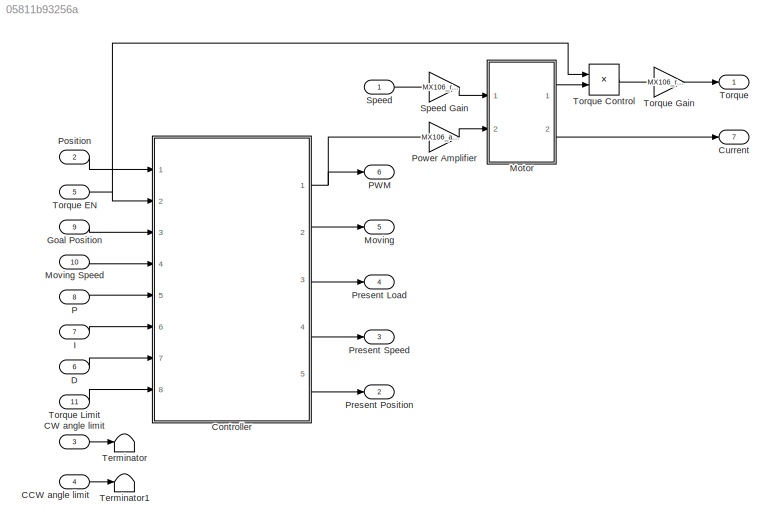
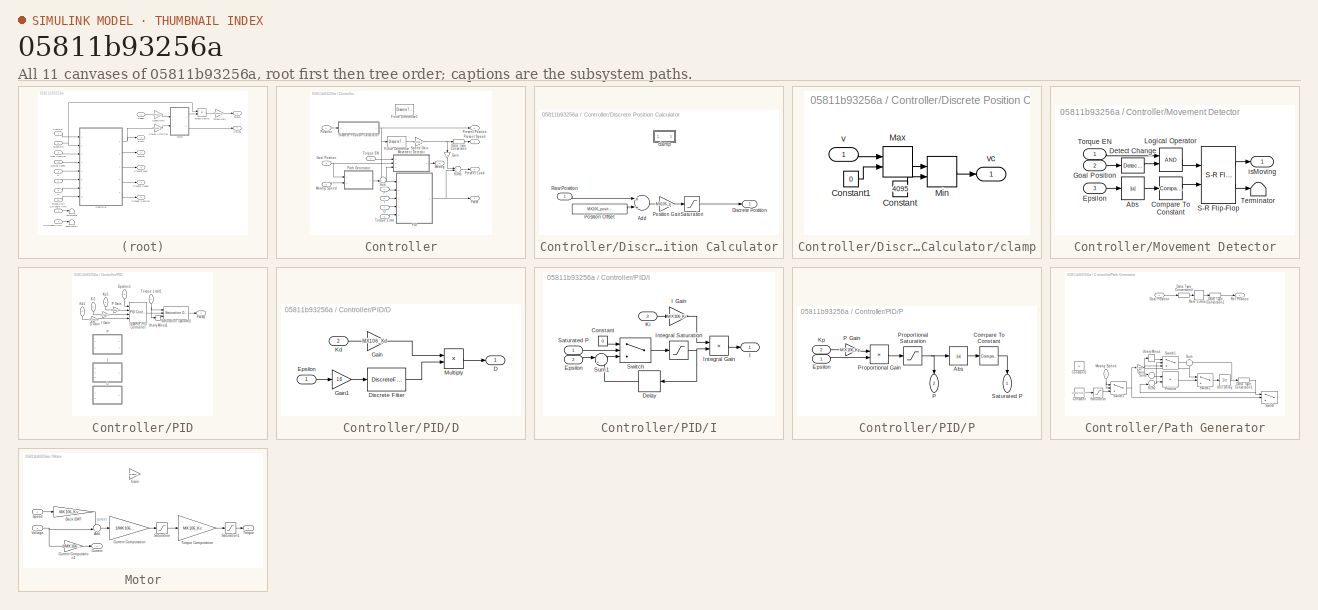
[diagram: thumbnail index - all 11 canvases of the model, root first then tree order]
MODEL slx_05811b93256a
KIND model
CONFIG AbsTol = auto
CONFIG EnableMultiTasking = off
CONFIG FixedStep = auto
CONFIG MaxStep = auto
CONFIG MinStep = auto
CONFIG RelTol = 1e-3
CONFIG SampleTimeConstraint = Unconstrained
CONFIG Solver = VariableStepAuto
CONFIG SolverName = VariableStepAuto
CONFIG StartTime = 0.0
CONFIG StopTime = 10.0
BLOCK [Inport] CCW angle limit
  IconDisplay = Port number
  OutDataTypeStr = int16
  Port = 4
BLOCK [Inport] CW angle limit
  IconDisplay = Port number
  OutDataTypeStr = int16
  Port = 3
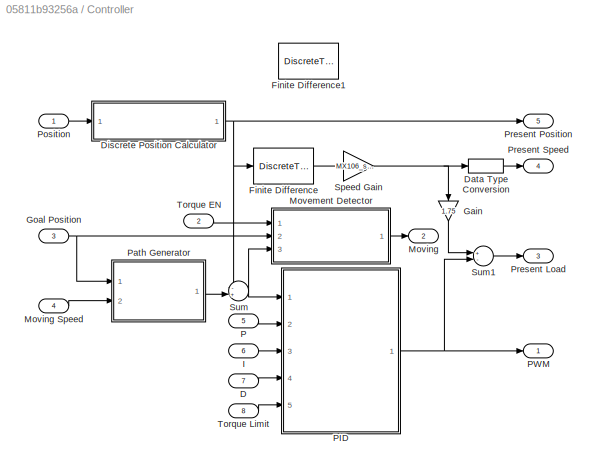
BLOCK [SubSystem] Controller
  Ports = [8, 5]
  RequestExecContextInheritance = off
BLOCK [Inport] Controller/D
  IconDisplay = Port number
  Port = 7
BLOCK [DataTypeConversion] Controller/Data Type Conversion
  OutDataTypeStr = int16
  RndMeth = Floor
  SaturateOnIntegerOverflow = off
BLOCK [SubSystem] Controller/Discrete Position Calculator
  Ports = [1, 1]
  RequestExecContextInheritance = off
BLOCK [Sum] Controller/Discrete Position Calculator/Add
  InputSameDT = off
  OutDataTypeStr = Inherit: Inherit via internal rule
  Ports = [2, 1]
  SaturateOnIntegerOverflow = off
BLOCK [Outport] Controller/Discrete Position Calculator/Discrete Position
  IconDisplay = Port number
BLOCK [Gain] Controller/Discrete Position Calculator/Position Gain
  Gain = MX106_position_gain
  OutDataTypeStr = int16
  OutMax = 4096
  OutMin = 0
  ParamDataTypeStr = Inherit: Inherit via internal rule
  SampleTime = MX106_Te
BLOCK [Constant] Controller/Discrete Position Calculator/Position Offset
  Value = MX106_position_offset
BLOCK [Inport] Controller/Discrete Position Calculator/Raw Position
  IconDisplay = Port number
BLOCK [Saturate] Controller/Discrete Position Calculator/Saturation
  InputPortMap = u0
  LowerLimit = 0
  Ports = [1, 1]
  UpperLimit = 4096
  ZeroCross = off
BLOCK [SubSystem] Controller/Discrete Position Calculator/clamp
  Commented = on
  Ports = [1, 1]
  RequestExecContextInheritance = off
BLOCK [Constant] Controller/Discrete Position Calculator/clamp/Constant
  Value = 4095
BLOCK [Constant] Controller/Discrete Position Calculator/clamp/Constant1
  Value = 0
BLOCK [MinMax] Controller/Discrete Position Calculator/clamp/Max
  Function = max
  InputSameDT = off
  Inputs = 2
  Ports = [2, 1]
  SaturateOnIntegerOverflow = off
BLOCK [MinMax] Controller/Discrete Position Calculator/clamp/Min
  InputSameDT = off
  Inputs = 2
  Ports = [2, 1]
  SaturateOnIntegerOverflow = off
BLOCK [Inport] Controller/Discrete Position Calculator/clamp/v
  IconDisplay = Port number
BLOCK [Outport] Controller/Discrete Position Calculator/clamp/vc
  IconDisplay = Port number
BLOCK [DiscreteTransferFcn] Controller/Finite Difference
  Denominator = [1 zeros(1,32)]
  InitialStates = (MX106_init_position + MX106_position_offset) * MX106_position_gain
  InputPortMap = u0
  Numerator = [1/32 zeros(1,31) -1/32]
  Ports = [1, 1]
  a0EqualsOne = on
BLOCK [DiscreteTransferFcn] Controller/Finite Difference1
  Commented = on
  Denominator = [1 zeros(1,1024)]
  InitialStates = (MX106_init_position + MX106_position_offset) * MX106_position_gain
  InputPortMap = u0
  Numerator = [1/48 zeros(1,1023) -1/48]
  Ports = [1, 1]
  a0EqualsOne = on
BLOCK [Gain] Controller/Gain
  Gain = 1.75
  OutDataTypeStr = int16
  ParamDataTypeStr = Inherit: Inherit via internal rule
  SaturateOnIntegerOverflow = off
BLOCK [Inport] Controller/Goal Position
  IconDisplay = Port number
  OutDataTypeStr = int16
  Port = 3
BLOCK [Inport] Controller/I
  IconDisplay = Port number
  Port = 6
BLOCK [SubSystem] Controller/Movement Detector
  Ports = [3, 1]
  RequestExecContextInheritance = off
BLOCK [Abs] Controller/Movement Detector/Abs
  SaturateOnIntegerOverflow = off
  ZeroCross = off
BLOCK [Reference] Controller/Movement Detector/Compare To Constant  REF=simulink/Logic and Bit
Operations/Compare
To Constant
  Ports = [1, 1]
  SourceBlock = simulink/Logic and Bit\nOperations/Compare\nTo Constant
  SourceProductBaseCode = SL
  SourceProductName = Simulink
  SourceType = Compare To Constant
BLOCK [Reference] Controller/Movement Detector/Detect Change  REF=simulink/Logic and Bit
Operations/Detect
Change
  Ports = [1, 1]
  SourceBlock = simulink/Logic and Bit\nOperations/Detect\nChange
  SourceProductBaseCode = SL
  SourceProductName = Simulink
  SourceType = Detect Change
BLOCK [Inport] Controller/Movement Detector/Epsilon
  IconDisplay = Port number
  Port = 3
BLOCK [Inport] Controller/Movement Detector/Goal Position
  IconDisplay = Port number
  Port = 2
BLOCK [Logic] Controller/Movement Detector/Logical Operator
  AllPortsSameDT = off
  OutDataTypeStr = boolean
  Ports = [2, 1]
BLOCK [Reference] Controller/Movement Detector/S-R Flip-Flop  REF=simulink_extras/Flip Flops/S-R
Flip-Flop
  Ports = [2, 2]
  SourceBlock = simulink_extras/Flip Flops/S-R\nFlip-Flop
  SourceProductBaseCode = SL
  SourceProductName = Simulink
  SourceType = SRFlipFlop
BLOCK [Terminator] Controller/Movement Detector/Terminator
BLOCK [Inport] Controller/Movement Detector/Torque EN
  IconDisplay = Port number
BLOCK [Outport] Controller/Movement Detector/isMoving
  IconDisplay = Port number
BLOCK [Outport] Controller/Moving
  IconDisplay = Port number
  Port = 2
BLOCK [Inport] Controller/Moving Speed
  IconDisplay = Port number
  Port = 4
BLOCK [Inport] Controller/P
  IconDisplay = Port number
  Port = 5
BLOCK [SubSystem] Controller/PID
  Ports = [5, 1]
  RequestExecContextInheritance = off
BLOCK [SubSystem] Controller/PID/D
  Commented = on
  Ports = [2, 1]
  RequestExecContextInheritance = off
BLOCK [Gain] Controller/PID/D Gain
  Gain = MX106_Kd
  OutDataTypeStr = double
  ParamDataTypeStr = Inherit: Inherit via internal rule
  SaturateOnIntegerOverflow = off
BLOCK [Outport] Controller/PID/D/D
  IconDisplay = Port number
BLOCK [DiscreteFilter] Controller/PID/D/Discrete Filter
  Denominator = [1]
  InputPortMap = u0
  Numerator = [1 -1]
  Ports = [1, 1]
BLOCK [Inport] Controller/PID/D/Epsilon
  IconDisplay = Port number
BLOCK [Gain] Controller/PID/D/Gain
  Gain = MX106_Kd
  OutDataTypeStr = double
  ParamDataTypeStr = Inherit: Inherit via internal rule
  SaturateOnIntegerOverflow = off
BLOCK [Gain] Controller/PID/D/Gain1
  Gain = 16
  OutDataTypeStr = Inherit: Inherit via internal rule
  ParamDataTypeStr = Inherit: Inherit via internal rule
  SaturateOnIntegerOverflow = off
BLOCK [Inport] Controller/PID/D/Kd
  IconDisplay = Port number
  Port = 2
BLOCK [Product] Controller/PID/D/Multiply
  InputSameDT = off
  OutDataTypeStr = Inherit: Inherit via internal rule
  Ports = [2, 1]
  RndMeth = Floor
  SaturateOnIntegerOverflow = off
BLOCK [Reference] Controller/PID/Discrete PID Controller  REF=simulink/Continuous/PID Controller
  Ports = [4, 1]
  SourceBlock = simulink/Continuous/PID Controller
  SourceProductBaseCode = SL
  SourceProductName = Simulink
  SourceType = PID 1dof
BLOCK [Inport] Controller/PID/Epsilon1
  IconDisplay = Port number
BLOCK [SubSystem] Controller/PID/I
  Commented = on
  Ports = [3, 1]
  RequestExecContextInheritance = off
BLOCK [Gain] Controller/PID/I Gain
  Gain = MX106_Ki
  OutDataTypeStr = double
  ParamDataTypeStr = Inherit: Inherit via internal rule
  SaturateOnIntegerOverflow = off
BLOCK [Constant] Controller/PID/I/Constant
  Value = 0
BLOCK [Delay] Controller/PID/I/Delay
  DelayLength = 1
  InputPortMap = u0
  Ports = [1, 1]
  SampleTime = MX106_Te
BLOCK [Inport] Controller/PID/I/Epsilon
  IconDisplay = Port number
  Port = 2
BLOCK [Outport] Controller/PID/I/I
  IconDisplay = Port number
BLOCK [Gain] Controller/PID/I/I Gain
  Gain = MX106_Ki
  OutDataTypeStr = double
  ParamDataTypeStr = Inherit: Inherit via internal rule
  SaturateOnIntegerOverflow = off
BLOCK [Product] Controller/PID/I/Integral Gain
  InputSameDT = off
  OutDataTypeStr = Inherit: Inherit via internal rule
  Ports = [2, 1]
  RndMeth = Floor
  SaturateOnIntegerOverflow = off
BLOCK [Saturate] Controller/PID/I/Integral Saturation
  InputPortMap = u0
  LowerLimit = -30690
  Ports = [1, 1]
  UpperLimit = 30690
  ZeroCross = off
BLOCK [Inport] Controller/PID/I/Ki
  IconDisplay = Port number
  Port = 3
BLOCK [Inport] Controller/PID/I/Saturated P
  IconDisplay = Port number
BLOCK [Sum] Controller/PID/I/Sum1
  IconShape = round
  InputSameDT = off
  Inputs = |++
  OutDataTypeStr = Inherit: Inherit via internal rule
  Ports = [2, 1]
  SaturateOnIntegerOverflow = off
BLOCK [Switch] Controller/PID/I/Switch
  InputSameDT = off
  SaturateOnIntegerOverflow = off
  Threshold = 0.5
  ZeroCross = off
BLOCK [Inport] Controller/PID/Kd1
  IconDisplay = Port number
  Port = 4
BLOCK [Inport] Controller/PID/Ki1
  IconDisplay = Port number
  Port = 3
BLOCK [Inport] Controller/PID/Kp1
  IconDisplay = Port number
  Port = 2
BLOCK [SubSystem] Controller/PID/P
  Commented = on
  Ports = [2, 2]
  RequestExecContextInheritance = off
BLOCK [Gain] Controller/PID/P Gain
  Gain = MX106_Kp
  OutDataTypeStr = double
  ParamDataTypeStr = Inherit: Inherit via internal rule
  SaturateOnIntegerOverflow = off
BLOCK [Abs] Controller/PID/P/Abs
  SaturateOnIntegerOverflow = off
  ZeroCross = off
BLOCK [Reference] Controller/PID/P/Compare To Constant  REF=simulink/Logic and Bit
Operations/Compare
To Constant
  Ports = [1, 1]
  SourceBlock = simulink/Logic and Bit\nOperations/Compare\nTo Constant
  SourceProductBaseCode = SL
  SourceProductName = Simulink
  SourceType = Compare To Constant
BLOCK [Inport] Controller/PID/P/Epsilon
  IconDisplay = Port number
BLOCK [Inport] Controller/PID/P/Kp
  IconDisplay = Port number
  Port = 2
BLOCK [Outport] Controller/PID/P/P
  IconDisplay = Port number
  Port = 2
BLOCK [Gain] Controller/PID/P/P Gain
  Gain = MX106_Kp
  OutDataTypeStr = double
  ParamDataTypeStr = Inherit: Inherit via internal rule
  SaturateOnIntegerOverflow = off
BLOCK [Product] Controller/PID/P/Proportional Gain
  InputSameDT = off
  OutDataTypeStr = Inherit: Inherit via internal rule
  Ports = [2, 1]
  RndMeth = Floor
  SaturateOnIntegerOverflow = off
BLOCK [Saturate] Controller/PID/P/Proportional Saturation
  InputPortMap = u0
  LowerLimit = -987
  Ports = [1, 1]
  UpperLimit = 987
  ZeroCross = off
BLOCK [Outport] Controller/PID/P/Saturated P
  IconDisplay = Port number
BLOCK [Outport] Controller/PID/PWM1
  IconDisplay = Port number
BLOCK [Reference] Controller/PID/Saturation Dynamic1  REF=simulink/Discontinuities/Saturation
Dynamic
  Ports = [3, 1]
  SourceBlock = simulink/Discontinuities/Saturation\nDynamic
  SourceProductBaseCode = SL
  SourceProductName = Simulink
  SourceType = Saturation Dynamic
BLOCK [Inport] Controller/PID/Torque Limit1
  IconDisplay = Port number
  Port = 5
BLOCK [UnaryMinus] Controller/PID/Unary Minus1
BLOCK [Outport] Controller/PWM
  IconDisplay = Port number
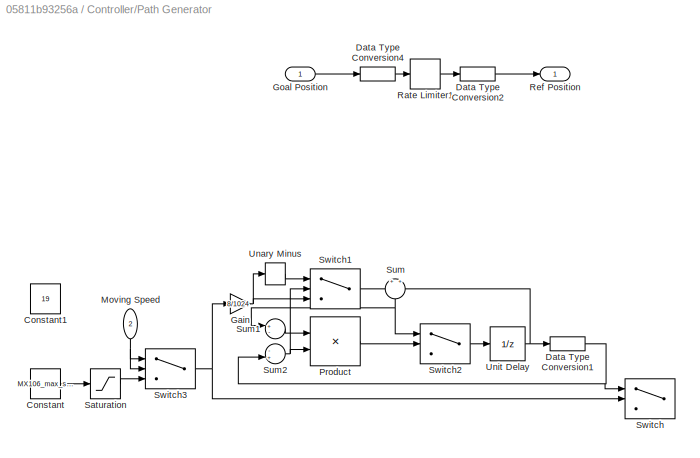
BLOCK [SubSystem] Controller/Path Generator
  Ports = [2, 1]
  RequestExecContextInheritance = off
BLOCK [Constant] Controller/Path Generator/Constant
  Commented = on
  Value = MX106_max_speed
BLOCK [Constant] Controller/Path Generator/Constant1
  Commented = on
  Value = 19
BLOCK [DataTypeConversion] Controller/Path Generator/Data Type Conversion1
  Commented = on
  OutDataTypeStr = int16
  RndMeth = Floor
  SaturateOnIntegerOverflow = off
BLOCK [DataTypeConversion] Controller/Path Generator/Data Type Conversion2
  OutDataTypeStr = int16
  RndMeth = Floor
  SaturateOnIntegerOverflow = off
BLOCK [DataTypeConversion] Controller/Path Generator/Data Type Conversion4
  OutDataTypeStr = double
  RndMeth = Floor
  SaturateOnIntegerOverflow = off
BLOCK [Gain] Controller/Path Generator/Gain
  Commented = on
  Gain = 8/1024
  OutDataTypeStr = Inherit: Inherit via internal rule
  ParamDataTypeStr = double
  SaturateOnIntegerOverflow = off
BLOCK [Inport] Controller/Path Generator/Goal Position
  IconDisplay = Port number
BLOCK [Inport] Controller/Path Generator/Moving Speed
  IconDisplay = Port number
  Port = 2
BLOCK [Product] Controller/Path Generator/Product
  Commented = on
  InputSameDT = off
  OutDataTypeStr = Inherit: Inherit via internal rule
  Ports = [2, 1]
  RndMeth = Floor
  SaturateOnIntegerOverflow = off
BLOCK [RateLimiter] Controller/Path Generator/Rate Limiter1
  FallingSlewLimit = -MX106_max_speed
  InitialCondition = (MX106_init_position + MX106_position_offset) * MX106_position_gain
  RisingSlewLimit = MX106_max_speed
  SampleTimeMode = inherited
BLOCK [Outport] Controller/Path Generator/Ref Position
  IconDisplay = Port number
BLOCK [Saturate] Controller/Path Generator/Saturation
  Commented = on
  InputPortMap = u0
  LowerLimit = 0
  Ports = [1, 1]
  UpperLimit = 1023
  ZeroCross = off
BLOCK [Sum] Controller/Path Generator/Sum
  Commented = on
  IconShape = round
  InputSameDT = off
  Inputs = +|+
  OutDataTypeStr = Inherit: Inherit via internal rule
  Ports = [2, 1]
  SaturateOnIntegerOverflow = off
BLOCK [Sum] Controller/Path Generator/Sum1
  Commented = on
  InputSameDT = off
  Inputs = +-
  OutDataTypeStr = Inherit: Inherit via internal rule
  Ports = [2, 1]
  SaturateOnIntegerOverflow = off
BLOCK [Sum] Controller/Path Generator/Sum2
  Commented = on
  InputSameDT = off
  Inputs = -+
  OutDataTypeStr = Inherit: Inherit via internal rule
  Ports = [2, 1]
  SaturateOnIntegerOverflow = off
BLOCK [Switch] Controller/Path Generator/Switch
  Commented = on
  Criteria = u2 > Threshold
  InputSameDT = off
  SaturateOnIntegerOverflow = off
  ZeroCross = off
BLOCK [Switch] Controller/Path Generator/Switch1
  Commented = on
  Criteria = u2 > Threshold
  InputSameDT = off
  SaturateOnIntegerOverflow = off
  ZeroCross = off
BLOCK [Switch] Controller/Path Generator/Switch2
  Commented = on
  InputSameDT = off
  SaturateOnIntegerOverflow = off
  ZeroCross = off
BLOCK [Switch] Controller/Path Generator/Switch3
  Commented = on
  Criteria = u2 ~= 0
  InputSameDT = off
  SaturateOnIntegerOverflow = off
  ZeroCross = off
BLOCK [UnaryMinus] Controller/Path Generator/Unary Minus
  Commented = on
BLOCK [UnitDelay] Controller/Path Generator/Unit Delay
  Commented = on
  InitialCondition = (MX106_init_position + MX106_position_offset) * MX106_position_gain
  InputProcessing = Elements as channels (sample based)
  SampleTime = -1
BLOCK [Inport] Controller/Position
  IconDisplay = Port number
BLOCK [Outport] Controller/Present Load
  IconDisplay = Port number
  Port = 3
BLOCK [Outport] Controller/Present Position
  IconDisplay = Port number
  Port = 5
BLOCK [Outport] Controller/Present Speed
  IconDisplay = Port number
  Port = 4
BLOCK [Gain] Controller/Speed Gain
  Gain = MX106_speed_gain
  OutDataTypeStr = double
  ParamDataTypeStr = Inherit: Inherit via internal rule
  SaturateOnIntegerOverflow = off
BLOCK [Sum] Controller/Sum
  AccumDataTypeStr = double
  IconShape = round
  InputSameDT = off
  Inputs = -+|
  OutDataTypeStr = int16
  OutMax = 4095
  OutMin = -4095
  Ports = [2, 1]
BLOCK [Sum] Controller/Sum1
  InputSameDT = off
  Inputs = +-
  OutDataTypeStr = Inherit: Inherit via internal rule
  Ports = [2, 1]
  SaturateOnIntegerOverflow = off
BLOCK [Inport] Controller/Torque EN
  IconDisplay = Port number
  Port = 2
BLOCK [Inport] Controller/Torque Limit
  IconDisplay = Port number
  Port = 8
BLOCK [Outport] Current
  IconDisplay = Port number
  Port = 7
BLOCK [Inport] D
  IconDisplay = Port number
  OutDataTypeStr = uint8
  Port = 6
BLOCK [Inport] Goal Position
  IconDisplay = Port number
  Port = 9
BLOCK [Inport] I
  IconDisplay = Port number
  OutDataTypeStr = uint8
  Port = 7
BLOCK [SubSystem] Motor
  Ports = [2, 2]
  RequestExecContextInheritance = off
BLOCK [Sum] Motor/Add
  IconShape = round
  InputSameDT = off
  Inputs = -+|
  OutDataTypeStr = Inherit: Inherit via internal rule
  Ports = [2, 1]
  SaturateOnIntegerOverflow = off
BLOCK [Gain] Motor/Back-EMF
  Gain = MX106_Kv
  OutDataTypeStr = Inherit: Inherit via internal rule
  ParamDataTypeStr = Inherit: Inherit via internal rule
  SaturateOnIntegerOverflow = off
BLOCK [Outport] Motor/Current
  IconDisplay = Port number
  Port = 2
BLOCK [Gain] Motor/Current Computation
  Gain = 1/MX106_resistor
  OutDataTypeStr = Inherit: Inherit via internal rule
  ParamDataTypeStr = Inherit: Inherit via internal rule
  SaturateOnIntegerOverflow = off
BLOCK [Gain] Motor/Current Computation1
  Gain = 1/MX106_resistor
  OutDataTypeStr = Inherit: Inherit via internal rule
  ParamDataTypeStr = Inherit: Inherit via internal rule
  SaturateOnIntegerOverflow = off
BLOCK [Gain] Motor/Gain
  Commented = on
  Gain = 10.8342769723011
  OutDataTypeStr = Inherit: Inherit via internal rule
  ParamDataTypeStr = Inherit: Inherit via internal rule
  SaturateOnIntegerOverflow = off
BLOCK [Saturate] Motor/Saturation
  InputPortMap = u0
  LowerLimit = -MX106_stall_current / MX106_reduction
  Ports = [1, 1]
  UpperLimit = MX106_stall_current / MX106_reduction
BLOCK [Saturate] Motor/Saturation1
  InputPortMap = u0
  LowerLimit = -MX106_stall_torque
  Ports = [1, 1]
  UpperLimit = MX106_stall_torque
BLOCK [Inport] Motor/Speed
  IconDisplay = Port number
BLOCK [Outport] Motor/Torque
  IconDisplay = Port number
BLOCK [Gain] Motor/Torque Computation
  Gain = MX106_Kc
  OutDataTypeStr = Inherit: Inherit via internal rule
  ParamDataTypeStr = Inherit: Inherit via internal rule
  SaturateOnIntegerOverflow = off
BLOCK [Inport] Motor/Voltage
  IconDisplay = Port number
  Port = 2
BLOCK [Outport] Moving
  IconDisplay = Port number
  Port = 5
BLOCK [Inport] Moving Speed
  IconDisplay = Port number
  OutDataTypeStr = int16
  Port = 10
BLOCK [Inport] P
  IconDisplay = Port number
  OutDataTypeStr = uint8
  Port = 8
BLOCK [Outport] PWM
  IconDisplay = Port number
  Port = 6
BLOCK [Inport] Position
  IconDisplay = Port number
  Port = 2
BLOCK [Gain] Power Amplifier
  Gain = MX106_amplifier
  OutDataTypeStr = double
  ParamDataTypeStr = Inherit: Inherit via internal rule
  SaturateOnIntegerOverflow = off
BLOCK [Outport] Present Load
  IconDisplay = Port number
  Port = 4
BLOCK [Outport] Present Position
  IconDisplay = Port number
  Port = 2
BLOCK [Outport] Present Speed
  IconDisplay = Port number
  Port = 3
BLOCK [Inport] Speed
  IconDisplay = Port number
BLOCK [Gain] Speed Gain
  Gain = MX106_reduction
  OutDataTypeStr = Inherit: Inherit via internal rule
  ParamDataTypeStr = Inherit: Inherit via internal rule
  SaturateOnIntegerOverflow = off
BLOCK [Terminator] Terminator
BLOCK [Terminator] Terminator1
BLOCK [Outport] Torque
  IconDisplay = Port number
BLOCK [Product] Torque Control
  InputSameDT = off
  OutDataTypeStr = Inherit: Inherit via internal rule
  Ports = [2, 1]
  RndMeth = Floor
  SaturateOnIntegerOverflow = off
BLOCK [Inport] Torque EN
  IconDisplay = Port number
  OutDataTypeStr = boolean
  Port = 5
BLOCK [Gain] Torque Gain
  Gain = MX106_reduction
  OutDataTypeStr = Inherit: Inherit via internal rule
  ParamDataTypeStr = Inherit: Inherit via internal rule
  SaturateOnIntegerOverflow = off
BLOCK [Inport] Torque Limit
  IconDisplay = Port number
  OutDataTypeStr = int16
  Port = 11
LINE CCW angle limit:1 -> Terminator1:1
LINE CW angle limit:1 -> Terminator:1
LINE Controller/D:1 -> Controller/PID:4
LINE Controller/Data Type Conversion:1 -> Controller/Present Speed:1
LINE Controller/Discrete Position Calculator/Add:1 -> Controller/Discrete Position Calculator/Position Gain:1
LINE Controller/Discrete Position Calculator/Position Gain:1 -> Controller/Discrete Position Calculator/Saturation:1
LINE Controller/Discrete Position Calculator/Position Offset:1 -> Controller/Discrete Position Calculator/Add:2
LINE Controller/Discrete Position Calculator/Raw Position:1 -> Controller/Discrete Position Calculator/Add:1
LINE Controller/Discrete Position Calculator/Saturation:1 -> Controller/Discrete Position Calculator/Discrete Position:1
LINE Controller/Discrete Position Calculator/clamp/Constant1:1 -> Controller/Discrete Position Calculator/clamp/Max:2
LINE Controller/Discrete Position Calculator/clamp/Constant:1 -> Controller/Discrete Position Calculator/clamp/Min:2
LINE Controller/Discrete Position Calculator/clamp/Max:1 -> Controller/Discrete Position Calculator/clamp/Min:1
LINE Controller/Discrete Position Calculator/clamp/Min:1 -> Controller/Discrete Position Calculator/clamp/vc:1
LINE Controller/Discrete Position Calculator/clamp/v:1 -> Controller/Discrete Position Calculator/clamp/Max:1
NET Controller/Discrete Position Calculator:1 -> Controller/Finite Difference:1, Controller/Present Position:1, Controller/Sum:1
LINE Controller/Finite Difference:1 -> Controller/Speed Gain:1
LINE Controller/Gain:1 -> Controller/Sum1:1
NET Controller/Goal Position:1 -> Controller/Movement Detector:2, Controller/Path Generator:1
LINE Controller/I:1 -> Controller/PID:3
LINE Controller/Movement Detector/Abs:1 -> Controller/Movement Detector/Compare To Constant:1
LINE Controller/Movement Detector/Compare To Constant:1 -> Controller/Movement Detector/S-R Flip-Flop:2
LINE Controller/Movement Detector/Detect Change:1 -> Controller/Movement Detector/Logical Operator:2
LINE Controller/Movement Detector/Epsilon:1 -> Controller/Movement Detector/Abs:1
LINE Controller/Movement Detector/Goal Position:1 -> Controller/Movement Detector/Detect Change:1
LINE Controller/Movement Detector/Logical Operator:1 -> Controller/Movement Detector/S-R Flip-Flop:1
LINE Controller/Movement Detector/S-R Flip-Flop:1 -> Controller/Movement Detector/isMoving:1
LINE Controller/Movement Detector/S-R Flip-Flop:2 -> Controller/Movement Detector/Terminator:1
LINE Controller/Movement Detector/Torque EN:1 -> Controller/Movement Detector/Logical Operator:1
LINE Controller/Movement Detector:1 -> Controller/Moving:1
LINE Controller/Moving Speed:1 -> Controller/Path Generator:2
LINE Controller/P:1 -> Controller/PID:2
LINE Controller/PID/D Gain:1 -> Controller/PID/Discrete PID Controller:4
LINE Controller/PID/D/Discrete Filter:1 -> Controller/PID/D/Multiply:2
LINE Controller/PID/D/Epsilon:1 -> Controller/PID/D/Gain1:1
LINE Controller/PID/D/Gain1:1 -> Controller/PID/D/Discrete Filter:1
LINE Controller/PID/D/Gain:1 -> Controller/PID/D/Multiply:1
LINE Controller/PID/D/Kd:1 -> Controller/PID/D/Gain:1
LINE Controller/PID/D/Multiply:1 -> Controller/PID/D/D:1
LINE Controller/PID/Discrete PID Controller:1 -> Controller/PID/Saturation Dynamic1:2
LINE Controller/PID/Epsilon1:1 -> Controller/PID/Discrete PID Controller:1
LINE Controller/PID/I Gain:1 -> Controller/PID/Discrete PID Controller:3
LINE Controller/PID/I/Constant:1 -> Controller/PID/I/Switch:1
LINE Controller/PID/I/Delay:1 -> Controller/PID/I/Sum1:2
LINE Controller/PID/I/Epsilon:1 -> Controller/PID/I/Sum1:1
LINE Controller/PID/I/I Gain:1 -> Controller/PID/I/Integral Gain:1
LINE Controller/PID/I/Integral Gain:1 -> Controller/PID/I/I:1
NET Controller/PID/I/Integral Saturation:1 -> Controller/PID/I/Delay:1, Controller/PID/I/Integral Gain:2
LINE Controller/PID/I/Ki:1 -> Controller/PID/I/I Gain:1
LINE Controller/PID/I/Saturated P:1 -> Controller/PID/I/Switch:2
LINE Controller/PID/I/Sum1:1 -> Controller/PID/I/Switch:3
LINE Controller/PID/I/Switch:1 -> Controller/PID/I/Integral Saturation:1
LINE Controller/PID/Kd1:1 -> Controller/PID/D Gain:1
LINE Controller/PID/Ki1:1 -> Controller/PID/I Gain:1
LINE Controller/PID/Kp1:1 -> Controller/PID/P Gain:1
LINE Controller/PID/P Gain:1 -> Controller/PID/Discrete PID Controller:2
LINE Controller/PID/P/Abs:1 -> Controller/PID/P/Compare To Constant:1
LINE Controller/PID/P/Compare To Constant:1 -> Controller/PID/P/Saturated P:1
LINE Controller/PID/P/Epsilon:1 -> Controller/PID/P/Proportional Gain:2
LINE Controller/PID/P/Kp:1 -> Controller/PID/P/P Gain:1
LINE Controller/PID/P/P Gain:1 -> Controller/PID/P/Proportional Gain:1
LINE Controller/PID/P/Proportional Gain:1 -> Controller/PID/P/Proportional Saturation:1
NET Controller/PID/P/Proportional Saturation:1 -> Controller/PID/P/Abs:1, Controller/PID/P/P:1
LINE Controller/PID/Saturation Dynamic1:1 -> Controller/PID/PWM1:1
NET Controller/PID/Torque Limit1:1 -> Controller/PID/Saturation Dynamic1:1, Controller/PID/Unary Minus1:1
LINE Controller/PID/Unary Minus1:1 -> Controller/PID/Saturation Dynamic1:3
NET Controller/PID:1 -> Controller/PWM:1, Controller/Sum1:2
LINE Controller/Path Generator/Constant:1 -> Controller/Path Generator/Saturation:1
NET Controller/Path Generator/Data Type Conversion1:1 -> Controller/Path Generator/Sum2:2, Controller/Path Generator/Switch:1
LINE Controller/Path Generator/Data Type Conversion2:1 -> Controller/Path Generator/Ref Position:1
LINE Controller/Path Generator/Data Type Conversion4:1 -> Controller/Path Generator/Rate Limiter1:1
NET Controller/Path Generator/Gain:1 -> Controller/Path Generator/Switch1:3, Controller/Path Generator/Unary Minus:1
LINE Controller/Path Generator/Goal Position:1 -> Controller/Path Generator/Data Type Conversion4:1
NET Controller/Path Generator/Moving Speed:1 -> Controller/Path Generator/Switch3:1, Controller/Path Generator/Switch3:2
LINE Controller/Path Generator/Product:1 -> Controller/Path Generator/Switch2:2
LINE Controller/Path Generator/Rate Limiter1:1 -> Controller/Path Generator/Data Type Conversion2:1
LINE Controller/Path Generator/Saturation:1 -> Controller/Path Generator/Switch3:3
LINE Controller/Path Generator/Sum1:1 -> Controller/Path Generator/Product:1
NET Controller/Path Generator/Sum2:1 -> Controller/Path Generator/Product:2, Controller/Path Generator/Switch1:2
NET Controller/Path Generator/Sum:1 -> Controller/Path Generator/Sum1:1, Controller/Path Generator/Switch2:1
LINE Controller/Path Generator/Switch1:1 -> Controller/Path Generator/Sum:1
LINE Controller/Path Generator/Switch2:1 -> Controller/Path Generator/Unit Delay:1
NET Controller/Path Generator/Switch3:1 -> Controller/Path Generator/Gain:1, Controller/Path Generator/Switch:2
LINE Controller/Path Generator/Unary Minus:1 -> Controller/Path Generator/Switch1:1
NET Controller/Path Generator/Unit Delay:1 -> Controller/Path Generator/Data Type Conversion1:1, Controller/Path Generator/Sum:2
LINE Controller/Path Generator:1 -> Controller/Sum:2
LINE Controller/Position:1 -> Controller/Discrete Position Calculator:1
NET Controller/Speed Gain:1 -> Controller/Data Type Conversion:1, Controller/Gain:1
LINE Controller/Sum1:1 -> Controller/Present Load:1
NET Controller/Sum:1 -> Controller/Movement Detector:3, Controller/PID:1
LINE Controller/Torque EN:1 -> Controller/Movement Detector:1
LINE Controller/Torque Limit:1 -> Controller/PID:5
NET Controller:1 -> PWM:1, Power Amplifier:1
LINE Controller:2 -> Moving:1
LINE Controller:3 -> Present Load:1
LINE Controller:4 -> Present Speed:1
LINE Controller:5 -> Present Position:1
LINE D:1 -> Controller:7
LINE Goal Position:1 -> Controller:3
LINE I:1 -> Controller:6
LINE Motor/Add:1 -> Motor/Current Computation:1
LINE Motor/Back-EMF:1 -> Motor/Add:1
LINE Motor/Current Computation1:1 -> Motor/Current:1
LINE Motor/Current Computation:1 -> Motor/Saturation:1
LINE Motor/Saturation1:1 -> Motor/Torque:1
LINE Motor/Saturation:1 -> Motor/Torque Computation:1
LINE Motor/Speed:1 -> Motor/Back-EMF:1
LINE Motor/Torque Computation:1 -> Motor/Saturation1:1
NET Motor/Voltage:1 -> Motor/Add:2, Motor/Current Computation1:1
LINE Motor:1 -> Torque Control:2
LINE Motor:2 -> Current:1
LINE Moving Speed:1 -> Controller:4
LINE P:1 -> Controller:5
LINE Position:1 -> Controller:1
LINE Power Amplifier:1 -> Motor:2
LINE Speed Gain:1 -> Motor:1
LINE Speed:1 -> Speed Gain:1
LINE Torque Control:1 -> Torque Gain:1
NET Torque EN:1 -> Controller:2, Torque Control:1
LINE Torque Gain:1 -> Torque:1
LINE Torque Limit:1 -> Controller:8
note: NET lines group one-source signal fan-out (src -> all destinations, sorted); 1:1 wires keep LINE
